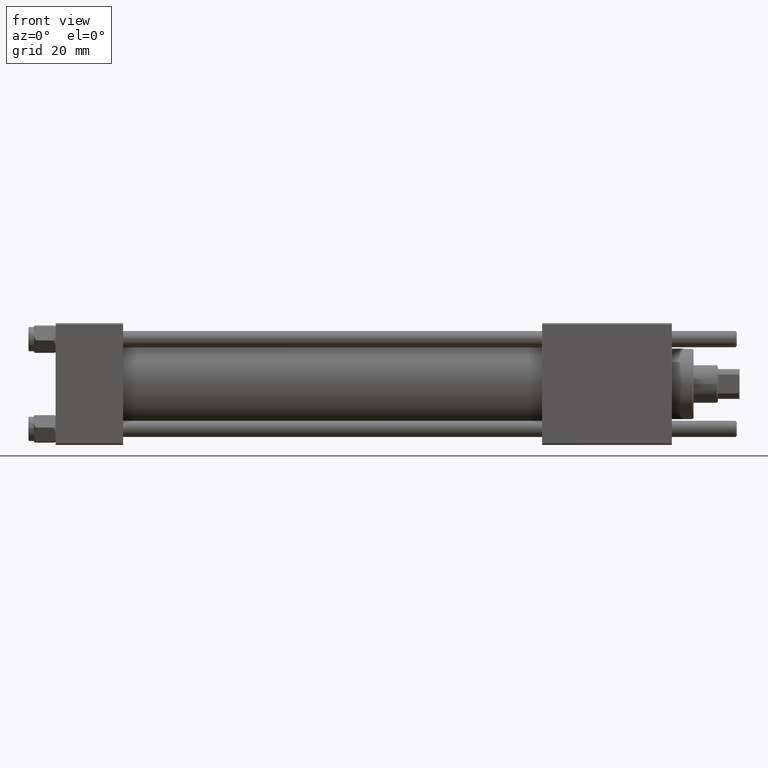
[diagram: clean part render]
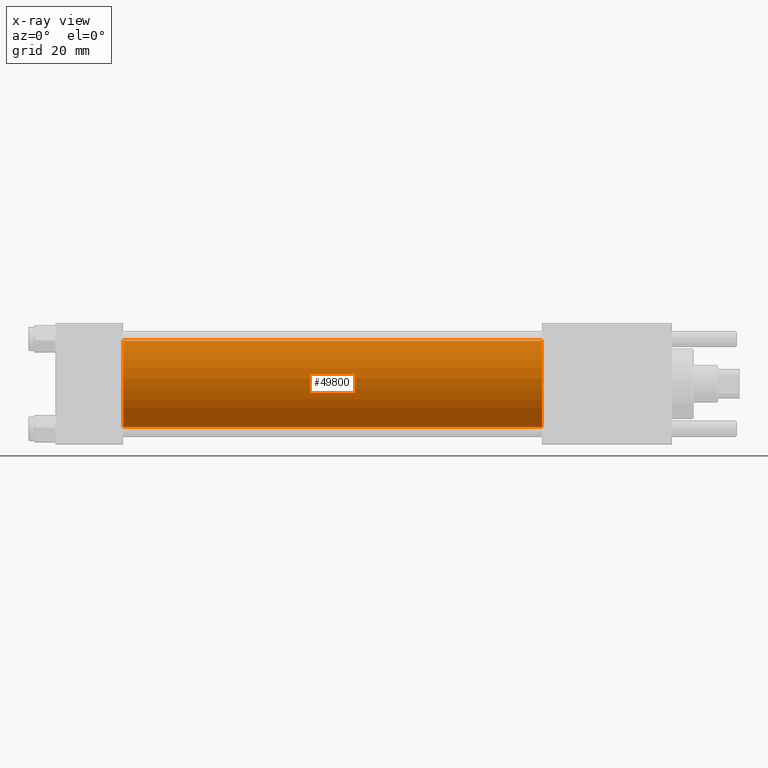
[diagram: x-ray — body ghosted, one internal face saturated and labeled with its STEP entity id]
A machine part, front view, then the same camera in x-ray: the body is ghosted and one INTERNAL B-rep face — a face not visible from any outside direction — is saturated and labeled: STEP entity #49800.
In plain terms, the highlighted cylindrical surface (partial cylindrical patch) has radius 16 mm, axis along (-1, -0, -0).
Its self-contained STEP definition (entity closure, byte-faithful):
#2595 = EDGE_CURVE ( 'NONE', #17072, #42271, #29563, .T. ) ;
#2864 = DIRECTION ( 'NONE',  ( -1.000000000000000000, -0.000000000000000000, -0.000000000000000000 ) ) ;
#2936 = VERTEX_POINT ( 'NONE', #16515 ) ;
#3060 = CARTESIAN_POINT ( 'NONE',  ( 25.00000000000000000, -2.602085213965210642E-15, 16.00000000000000000 ) ) ;
#5947 = CARTESIAN_POINT ( 'NONE',  ( 25.00000000000000000, -2.602085213965210642E-15, 0.000000000000000000 ) ) ;
#7413 = EDGE_CURVE ( 'NONE', #42271, #2936, #35946, .T. ) ;
#9139 = CARTESIAN_POINT ( 'NONE',  ( 180.0000000000000000, -6.426503353294456087E-16, -16.00000000000000000 ) ) ;
#9972 = DIRECTION ( 'NONE',  ( 1.000000000000000000, 0.000000000000000000, 0.000000000000000000 ) ) ;
#11777 = DIRECTION ( 'NONE',  ( -1.000000000000000000, -0.000000000000000000, -0.000000000000000000 ) ) ;
#11789 = CYLINDRICAL_SURFACE ( 'NONE', #53293, 16.00000000000000000 ) ;
#13720 = DIRECTION ( 'NONE',  ( 0.000000000000000000, 0.000000000000000000, -1.000000000000000000 ) ) ;
#14304 = ORIENTED_EDGE ( 'NONE', *, *, #31076, .T. ) ;
#16515 = CARTESIAN_POINT ( 'NONE',  ( 25.00000000000000000, -6.426503353294456087E-16, -16.00000000000000000 ) ) ;
#17072 = VERTEX_POINT ( 'NONE', #50544 ) ;
#20625 = VECTOR ( 'NONE', #42237, 1000.000000000000000 ) ;
#22282 = EDGE_CURVE ( 'NONE', #43361, #2936, #55734, .T. ) ;
#23658 = CIRCLE ( 'NONE', #55762, 16.00000000000000000 ) ;
#24696 = CARTESIAN_POINT ( 'NONE',  ( 180.0000000000000000, -6.426503353294456087E-16, -16.00000000000000000 ) ) ;
#24702 = CARTESIAN_POINT ( 'NONE',  ( 180.0000000000000000, -2.602085213965210642E-15, 0.000000000000000000 ) ) ;
#27419 = DIRECTION ( 'NONE',  ( 1.000000000000000000, 0.000000000000000000, 0.000000000000000000 ) ) ;
#29288 = DIRECTION ( 'NONE',  ( 0.000000000000000000, 0.000000000000000000, 1.000000000000000000 ) ) ;
#29563 = LINE ( 'NONE', #46826, #50524 ) ;
#31076 = EDGE_CURVE ( 'NONE', #17072, #43361, #23658, .T. ) ;
#31739 = DIRECTION ( 'NONE',  ( 0.000000000000000000, 0.000000000000000000, -1.000000000000000000 ) ) ;
#35233 = ORIENTED_EDGE ( 'NONE', *, *, #2595, .F. ) ;
#35946 = CIRCLE ( 'NONE', #38702, 16.00000000000000000 ) ;
#36338 = CARTESIAN_POINT ( 'NONE',  ( 180.0000000000000000, -2.602085213965210642E-15, 0.000000000000000000 ) ) ;
#38305 = ORIENTED_EDGE ( 'NONE', *, *, #22282, .T. ) ;
#38702 = AXIS2_PLACEMENT_3D ( 'NONE', #5947, #9972, #13720 ) ;
#42237 = DIRECTION ( 'NONE',  ( -1.000000000000000000, -0.000000000000000000, -0.000000000000000000 ) ) ;
#42271 = VERTEX_POINT ( 'NONE', #3060 ) ;
#43361 = VERTEX_POINT ( 'NONE', #9139 ) ;
#46569 = FACE_OUTER_BOUND ( 'NONE', #51019, .T. ) ;
#46826 = CARTESIAN_POINT ( 'NONE',  ( 180.0000000000000000, -2.602085213965210642E-15, 16.00000000000000000 ) ) ;
#49800 = ADVANCED_FACE ( 'NONE', ( #46569 ), #11789, .F. ) ;
#50524 = VECTOR ( 'NONE', #11777, 1000.000000000000000 ) ;
#50544 = CARTESIAN_POINT ( 'NONE',  ( 180.0000000000000000, -2.602085213965210642E-15, 16.00000000000000000 ) ) ;
#51019 = EDGE_LOOP ( 'NONE', ( #14304, #38305, #54977, #35233 ) ) ;
#53293 = AXIS2_PLACEMENT_3D ( 'NONE', #24702, #2864, #29288 ) ;
#54977 = ORIENTED_EDGE ( 'NONE', *, *, #7413, .F. ) ;
#55734 = LINE ( 'NONE', #24696, #20625 ) ;
#55762 = AXIS2_PLACEMENT_3D ( 'NONE', #36338, #27419, #31739 ) ;